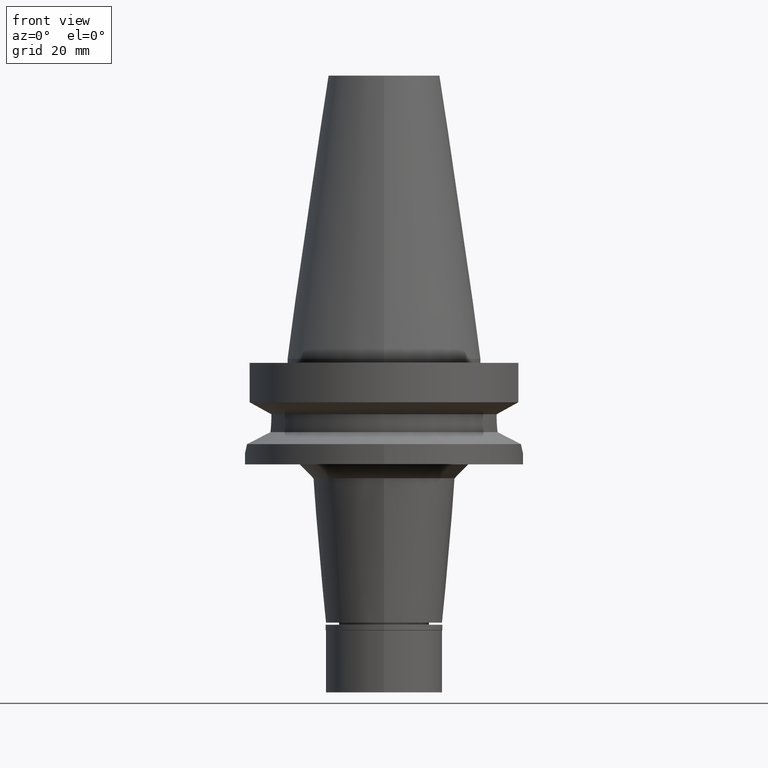
[diagram: clean part render]
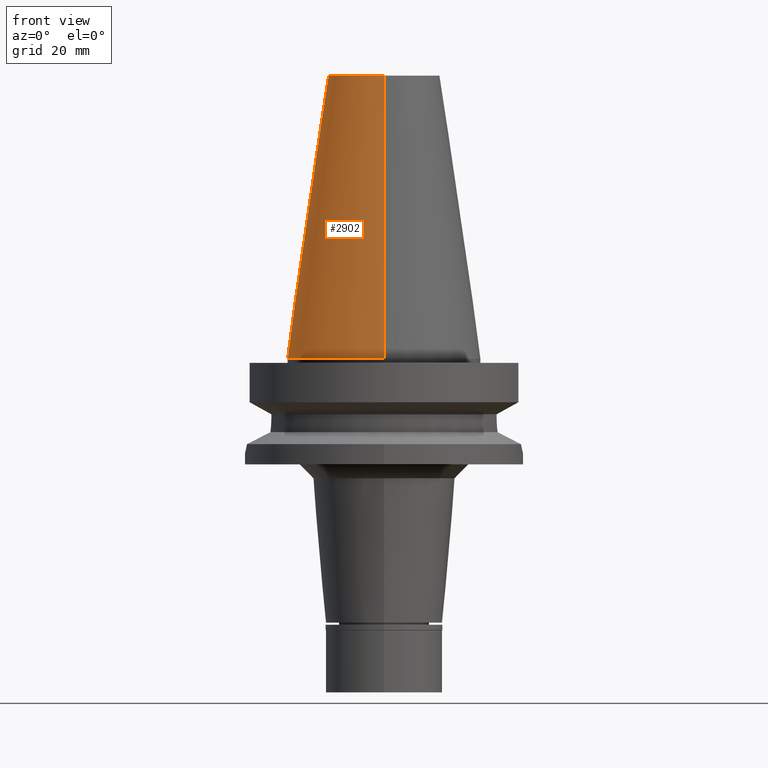
[diagram: same view with one face highlighted and labeled with its STEP entity id]
A machine part, front view. The second image highlights one B-rep face of the part: STEP entity #2902.
In plain terms, the highlighted conical surface has half-angle 8.297 deg.
Its self-contained STEP definition (entity closure, byte-faithful):
#125 = VECTOR ( 'NONE', #312, 1000.000000000000114 ) ;
#127 = CARTESIAN_POINT ( 'NONE',  ( 0.0000000000000000000, 1.847992019912999597E-14, 101.7999999999999972 ) ) ;
#249 = CARTESIAN_POINT ( 'NONE',  ( 0.0000000000000000000, -20.07942971896000017, 101.7999999999999972 ) ) ;
#312 = DIRECTION ( 'NONE',  ( 0.0000000000000000000, 0.1443043893538948075, -0.9895333461855641000 ) ) ;
#429 = CARTESIAN_POINT ( 'NONE',  ( 0.0000000000000000000, 1.847992019912999597E-14, 50.89999999999999858 ) ) ;
#430 = CARTESIAN_POINT ( 'NONE',  ( 0.0000000000000000000, -20.07942971896000017, 101.7999999999999972 ) ) ;
#454 = CARTESIAN_POINT ( 'NONE',  ( 0.0000000000000000000, 34.92499999999999716, 4.902744876745000264E-13 ) ) ;
#638 = DIRECTION ( 'NONE',  ( 0.0000000000000000000, 0.0000000000000000000, -1.000000000000000000 ) ) ;
#659 = EDGE_LOOP ( 'NONE', ( #1909, #1564, #722, #2120 ) ) ;
#722 = ORIENTED_EDGE ( 'NONE', *, *, #1407, .T. ) ;
#884 = DIRECTION ( 'NONE',  ( 0.0000000000000000000, -1.000000000000000000, 0.0000000000000000000 ) ) ;
#1127 = AXIS2_PLACEMENT_3D ( 'NONE', #429, #2211, #1213 ) ;
#1146 = CARTESIAN_POINT ( 'NONE',  ( 0.0000000000000000000, 20.07942971896000017, 101.7999999999999972 ) ) ;
#1169 = VECTOR ( 'NONE', #1656, 1000.000000000000114 ) ;
#1213 = DIRECTION ( 'NONE',  ( 0.0000000000000000000, -1.000000000000000000, 0.0000000000000000000 ) ) ;
#1337 = AXIS2_PLACEMENT_3D ( 'NONE', #127, #1581, #884 ) ;
#1407 = EDGE_CURVE ( 'NONE', #2157, #1508, #2511, .T. ) ;
#1508 = VERTEX_POINT ( 'NONE', #1146 ) ;
#1540 = CONICAL_SURFACE ( 'NONE', #1127, 27.50221485948000222, 0.1448099680379422438 ) ;
#1564 = ORIENTED_EDGE ( 'NONE', *, *, #2521, .F. ) ;
#1581 = DIRECTION ( 'NONE',  ( 0.0000000000000000000, 0.0000000000000000000, -1.000000000000000000 ) ) ;
#1656 = DIRECTION ( 'NONE',  ( 0.0000000000000000000, -0.1443043893538948075, -0.9895333461855641000 ) ) ;
#1662 = VERTEX_POINT ( 'NONE', #454 ) ;
#1769 = LINE ( 'NONE', #2496, #125 ) ;
#1866 = DIRECTION ( 'NONE',  ( 0.0000000000000000000, -1.000000000000000000, 0.0000000000000000000 ) ) ;
#1909 = ORIENTED_EDGE ( 'NONE', *, *, #2322, .F. ) ;
#2098 = CARTESIAN_POINT ( 'NONE',  ( 0.0000000000000000000, 1.847992019912999597E-14, 3.979039320256999774E-13 ) ) ;
#2120 = ORIENTED_EDGE ( 'NONE', *, *, #2288, .T. ) ;
#2157 = VERTEX_POINT ( 'NONE', #430 ) ;
#2173 = FACE_OUTER_BOUND ( 'NONE', #659, .T. ) ;
#2184 = LINE ( 'NONE', #249, #1169 ) ;
#2185 = VERTEX_POINT ( 'NONE', #2279 ) ;
#2211 = DIRECTION ( 'NONE',  ( 0.0000000000000000000, 0.0000000000000000000, -1.000000000000000000 ) ) ;
#2279 = CARTESIAN_POINT ( 'NONE',  ( 0.0000000000000000000, -34.92499999999999716, 4.902744876745000264E-13 ) ) ;
#2288 = EDGE_CURVE ( 'NONE', #1508, #1662, #1769, .T. ) ;
#2322 = EDGE_CURVE ( 'NONE', #2185, #1662, #2745, .T. ) ;
#2496 = CARTESIAN_POINT ( 'NONE',  ( 0.0000000000000000000, 20.07942971896000017, 101.7999999999999972 ) ) ;
#2511 = CIRCLE ( 'NONE', #1337, 20.07942971896000017 ) ;
#2521 = EDGE_CURVE ( 'NONE', #2157, #2185, #2184, .T. ) ;
#2745 = CIRCLE ( 'NONE', #2846, 34.92499999999999716 ) ;
#2846 = AXIS2_PLACEMENT_3D ( 'NONE', #2098, #638, #1866 ) ;
#2902 = ADVANCED_FACE ( 'NONE', ( #2173 ), #1540, .T. ) ;